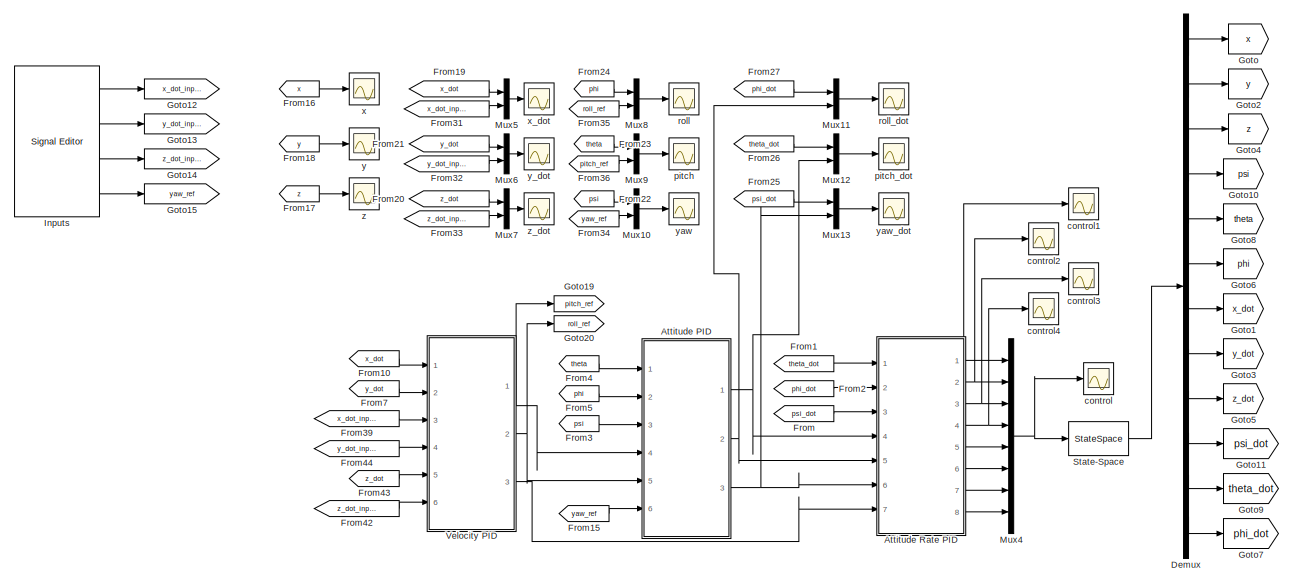
[diagram: root canvas - part 1/2, full width, top band]
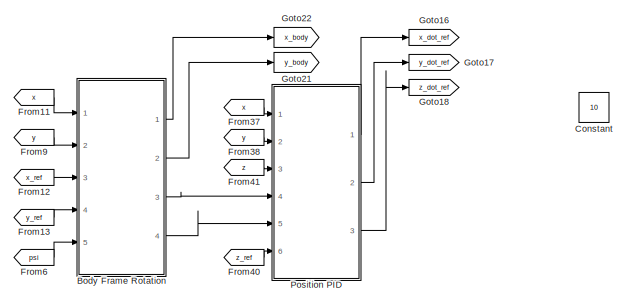
[diagram: root canvas - part 2/2, bottom left region]
MODEL slx_8fafa94729f0
KIND model
CONFIG AbsTol = auto
CONFIG EnableMultiTasking = off
CONFIG FixedStep = auto
CONFIG MaxStep = auto
CONFIG MinStep = auto
CONFIG RelTol = 1e-3
CONFIG SampleTimeConstraint = Unconstrained
CONFIG SolverName = VariableStepAuto
CONFIG StartTime = 0.0
CONFIG StopTime = 10
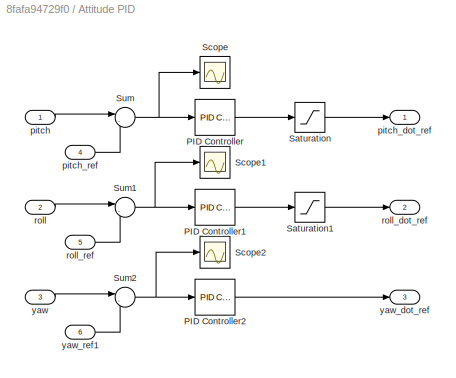
BLOCK [SubSystem] Attitude PID
  Ports = [6, 3]
  RequestExecContextInheritance = off
BLOCK [Reference] Attitude PID/PID Controller  REF=slpidlib/PID Controller
  Ports = [1, 1]
  SourceBlock = slpidlib/PID Controller
  SourceProductBaseCode = SL
  SourceType = PID 1dof
BLOCK [Reference] Attitude PID/PID Controller1  REF=slpidlib/PID Controller
  Ports = [1, 1]
  SourceBlock = slpidlib/PID Controller
  SourceProductBaseCode = SL
  SourceType = PID 1dof
BLOCK [Reference] Attitude PID/PID Controller2  REF=slpidlib/PID Controller
  Ports = [1, 1]
  SourceBlock = slpidlib/PID Controller
  SourceProductBaseCode = SL
  SourceType = PID 1dof
BLOCK [Saturate] Attitude PID/Saturation
  LowerLimit = -50
  UpperLimit = 50
BLOCK [Saturate] Attitude PID/Saturation1
  LowerLimit = -50
  UpperLimit = 50
BLOCK [Scope] Attitude PID/Scope
  Floating = off
  NumInputPorts = 1
  Ports = [1]
  ScopeSpecificationString = Simulink.scopes.TimeScopeBlockCfg('CurrentConfiguration', extmgr.ConfigurationSet(extmgr.Configuration('Core','General UI',true),extmgr.Configuration('Core','Source UI',true),extmgr.Configuration('Sources','WiredSimulink',true,'DataLoggingVariableName','ScopeData18'),extmgr.Configuration('Visuals','Time Domain',true,'SerializedDisplays',{struct('MinYLimReal','-0.52925','MaxYLimReal','0.4951','YLab...<+1413ch>
BLOCK [Scope] Attitude PID/Scope1
  Floating = off
  NumInputPorts = 1
  Ports = [1]
  ScopeSpecificationString = Simulink.scopes.TimeScopeBlockCfg('CurrentConfiguration', extmgr.ConfigurationSet(extmgr.Configuration('Core','General UI',true),extmgr.Configuration('Core','Source UI',true),extmgr.Configuration('Sources','WiredSimulink',true,'DataLoggingVariableName','ScopeData19'),extmgr.Configuration('Visuals','Time Domain',true,'SerializedDisplays',{struct('MinYLimReal','-7.62618','MaxYLimReal','13.13226','YL...<+1401ch>
BLOCK [Scope] Attitude PID/Scope2
  Floating = off
  NumInputPorts = 1
  Ports = [1]
  ScopeSpecificationString = Simulink.scopes.TimeScopeBlockCfg('CurrentConfiguration', extmgr.ConfigurationSet(extmgr.Configuration('Core','General UI',true),extmgr.Configuration('Core','Source UI',true),extmgr.Configuration('Sources','WiredSimulink',true,'DataLoggingVariableName','ScopeData20'),extmgr.Configuration('Visuals','Time Domain',true),extmgr.Configuration('Tools','Plot Navigation',true),extmgr.Configuration('Tools'...<+41ch>
BLOCK [Sum] Attitude PID/Sum
  Inputs = |-+
  Ports = [2, 1]
BLOCK [Sum] Attitude PID/Sum1
  Inputs = |-+
  Ports = [2, 1]
BLOCK [Sum] Attitude PID/Sum2
  Inputs = |-+
  Ports = [2, 1]
BLOCK [Inport] Attitude PID/pitch
BLOCK [Outport] Attitude PID/pitch_dot_ref
BLOCK [Inport] Attitude PID/pitch_ref
  Port = 4
BLOCK [Inport] Attitude PID/roll
  Port = 2
BLOCK [Outport] Attitude PID/roll_dot_ref
  Port = 2
BLOCK [Inport] Attitude PID/roll_ref
  Port = 5
BLOCK [Inport] Attitude PID/yaw
  Port = 3
BLOCK [Outport] Attitude PID/yaw_dot_ref
  Port = 3
BLOCK [Inport] Attitude PID/yaw_ref1
  Port = 6
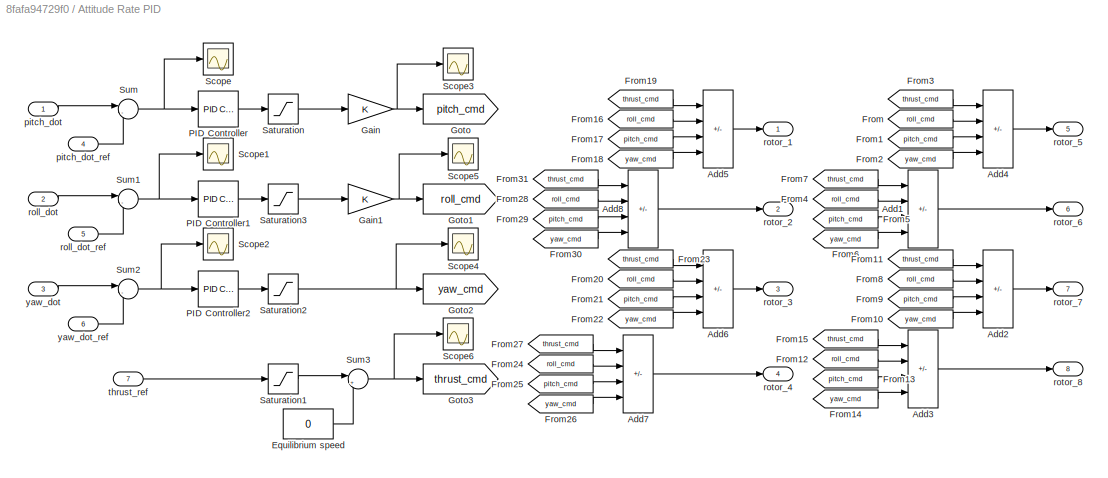
BLOCK [SubSystem] Attitude Rate PID
  Ports = [7, 8]
  RequestExecContextInheritance = off
BLOCK [Sum] Attitude Rate PID/Add1
  IconShape = rectangular
  Inputs = +-++
  Ports = [4, 1]
BLOCK [Sum] Attitude Rate PID/Add2
  IconShape = rectangular
  Inputs = +++-
  Ports = [4, 1]
BLOCK [Sum] Attitude Rate PID/Add3
  IconShape = rectangular
  Inputs = ++-+
  Ports = [4, 1]
BLOCK [Sum] Attitude Rate PID/Add4
  IconShape = rectangular
  Inputs = +---
  Ports = [4, 1]
BLOCK [Sum] Attitude Rate PID/Add5
  IconShape = rectangular
  Inputs = +---
  Ports = [4, 1]
BLOCK [Sum] Attitude Rate PID/Add6
  IconShape = rectangular
  Inputs = +++-
  Ports = [4, 1]
BLOCK [Sum] Attitude Rate PID/Add7
  IconShape = rectangular
  Inputs = ++-+
  Ports = [4, 1]
BLOCK [Sum] Attitude Rate PID/Add8
  IconShape = rectangular
  Inputs = +-++
  Ports = [4, 1]
BLOCK [Constant] Attitude Rate PID/Equilibrium speed
  Value = 0
BLOCK [From] Attitude Rate PID/From
  GotoTag = roll_cmd
BLOCK [From] Attitude Rate PID/From1
  GotoTag = pitch_cmd
BLOCK [From] Attitude Rate PID/From10
  GotoTag = yaw_cmd
BLOCK [From] Attitude Rate PID/From11
  GotoTag = thrust_cmd
BLOCK [From] Attitude Rate PID/From12
  GotoTag = roll_cmd
BLOCK [From] Attitude Rate PID/From13
  GotoTag = pitch_cmd
BLOCK [From] Attitude Rate PID/From14
  GotoTag = yaw_cmd
BLOCK [From] Attitude Rate PID/From15
  GotoTag = thrust_cmd
BLOCK [From] Attitude Rate PID/From16
  GotoTag = roll_cmd
BLOCK [From] Attitude Rate PID/From17
  GotoTag = pitch_cmd
BLOCK [From] Attitude Rate PID/From18
  GotoTag = yaw_cmd
BLOCK [From] Attitude Rate PID/From19
  GotoTag = thrust_cmd
BLOCK [From] Attitude Rate PID/From2
  GotoTag = yaw_cmd
BLOCK [From] Attitude Rate PID/From20
  GotoTag = roll_cmd
BLOCK [From] Attitude Rate PID/From21
  GotoTag = pitch_cmd
BLOCK [From] Attitude Rate PID/From22
  GotoTag = yaw_cmd
BLOCK [From] Attitude Rate PID/From23
  GotoTag = thrust_cmd
BLOCK [From] Attitude Rate PID/From24
  GotoTag = roll_cmd
BLOCK [From] Attitude Rate PID/From25
  GotoTag = pitch_cmd
BLOCK [From] Attitude Rate PID/From26
  GotoTag = yaw_cmd
BLOCK [From] Attitude Rate PID/From27
  GotoTag = thrust_cmd
BLOCK [From] Attitude Rate PID/From28
  GotoTag = roll_cmd
BLOCK [From] Attitude Rate PID/From29
  GotoTag = pitch_cmd
BLOCK [From] Attitude Rate PID/From3
  GotoTag = thrust_cmd
BLOCK [From] Attitude Rate PID/From30
  GotoTag = yaw_cmd
BLOCK [From] Attitude Rate PID/From31
  GotoTag = thrust_cmd
BLOCK [From] Attitude Rate PID/From4
  GotoTag = roll_cmd
BLOCK [From] Attitude Rate PID/From5
  GotoTag = pitch_cmd
BLOCK [From] Attitude Rate PID/From6
  GotoTag = yaw_cmd
BLOCK [From] Attitude Rate PID/From7
  GotoTag = thrust_cmd
BLOCK [From] Attitude Rate PID/From8
  GotoTag = roll_cmd
BLOCK [From] Attitude Rate PID/From9
  GotoTag = pitch_cmd
BLOCK [Gain] Attitude Rate PID/Gain
BLOCK [Gain] Attitude Rate PID/Gain1
BLOCK [Goto] Attitude Rate PID/Goto
  GotoTag = pitch_cmd
BLOCK [Goto] Attitude Rate PID/Goto1
  GotoTag = roll_cmd
BLOCK [Goto] Attitude Rate PID/Goto2
  GotoTag = yaw_cmd
BLOCK [Goto] Attitude Rate PID/Goto3
  GotoTag = thrust_cmd
BLOCK [Reference] Attitude Rate PID/PID Controller  REF=slpidlib/PID Controller
  Ports = [1, 1]
  SourceBlock = slpidlib/PID Controller
  SourceProductBaseCode = SL
  SourceType = PID 1dof
BLOCK [Reference] Attitude Rate PID/PID Controller1  REF=slpidlib/PID Controller
  Ports = [1, 1]
  SourceBlock = slpidlib/PID Controller
  SourceProductBaseCode = SL
  SourceType = PID 1dof
BLOCK [Reference] Attitude Rate PID/PID Controller2  REF=slpidlib/PID Controller
  Ports = [1, 1]
  SourceBlock = slpidlib/PID Controller
  SourceProductBaseCode = SL
  SourceType = PID 1dof
BLOCK [Saturate] Attitude Rate PID/Saturation
  LowerLimit = -2000
  UpperLimit = 2000
BLOCK [Saturate] Attitude Rate PID/Saturation1
  LowerLimit = -4000
  UpperLimit = 4000
BLOCK [Saturate] Attitude Rate PID/Saturation2
  LowerLimit = -2000
  UpperLimit = 2000
BLOCK [Saturate] Attitude Rate PID/Saturation3
  LowerLimit = -16000
  UpperLimit = 20000
BLOCK [Scope] Attitude Rate PID/Scope
  Floating = off
  NumInputPorts = 1
  Ports = [1]
  ScopeSpecificationString = Simulink.scopes.TimeScopeBlockCfg('CurrentConfiguration', extmgr.ConfigurationSet(extmgr.Configuration('Core','General UI',true),extmgr.Configuration('Core','Source UI',true),extmgr.Configuration('Sources','WiredSimulink',true,'DataLoggingVariableName','ScopeData21'),extmgr.Configuration('Visuals','Time Domain',true,'SerializedDisplays',{struct('MinYLimReal','-26.05046','MaxYLimReal','22.12504','Y...<+1388ch>
BLOCK [Scope] Attitude Rate PID/Scope1
  Floating = off
  NumInputPorts = 1
  Ports = [1]
  ScopeSpecificationString = Simulink.scopes.TimeScopeBlockCfg('CurrentConfiguration', extmgr.ConfigurationSet(extmgr.Configuration('Core','General UI',true),extmgr.Configuration('Core','Source UI',true),extmgr.Configuration('Sources','WiredSimulink',true,'DataLoggingVariableName','ScopeData22'),extmgr.Configuration('Visuals','Time Domain',true,'SerializedDisplays',{struct('MinYLimReal','-62.49988','MaxYLimReal','62.49891','Y...<+1370ch>
BLOCK [Scope] Attitude Rate PID/Scope2
  Floating = off
  NumInputPorts = 1
  Ports = [1]
  ScopeSpecificationString = Simulink.scopes.TimeScopeBlockCfg('CurrentConfiguration', extmgr.ConfigurationSet(extmgr.Configuration('Core','General UI',true),extmgr.Configuration('Core','Source UI',true),extmgr.Configuration('Sources','WiredSimulink',true,'DataLoggingVariableName','ScopeData23'),extmgr.Configuration('Visuals','Time Domain',true),extmgr.Configuration('Tools','Plot Navigation',true),extmgr.Configuration('Tools'...<+41ch>
BLOCK [Scope] Attitude Rate PID/Scope3
  Floating = off
  NumInputPorts = 1
  Ports = [1]
  ScopeSpecificationString = Simulink.scopes.TimeScopeBlockCfg('CurrentConfiguration', extmgr.ConfigurationSet(extmgr.Configuration('Core','General UI',true),extmgr.Configuration('Core','Source UI',true),extmgr.Configuration('Sources','WiredSimulink',true,'DataLoggingVariableName','ScopeData28'),extmgr.Configuration('Visuals','Time Domain',true,'SerializedDisplays',{struct('MinYLimReal','-0.0004','MaxYLimReal','0.00048','YLab...<+1362ch>
BLOCK [Scope] Attitude Rate PID/Scope4
  Floating = off
  NumInputPorts = 1
  Ports = [1]
  ScopeSpecificationString = Simulink.scopes.TimeScopeBlockCfg('CurrentConfiguration', extmgr.ConfigurationSet(extmgr.Configuration('Core','General UI',true),extmgr.Configuration('Core','Source UI',true),extmgr.Configuration('Sources','WiredSimulink',true,'DataLoggingVariableName','ScopeData29'),extmgr.Configuration('Visuals','Time Domain',true),extmgr.Configuration('Tools','Plot Navigation',true),extmgr.Configuration('Tools'...<+41ch>
BLOCK [Scope] Attitude Rate PID/Scope5
  Floating = off
  NumInputPorts = 1
  Ports = [1]
  ScopeSpecificationString = Simulink.scopes.TimeScopeBlockCfg('CurrentConfiguration', extmgr.ConfigurationSet(extmgr.Configuration('Core','General UI',true),extmgr.Configuration('Core','Source UI',true),extmgr.Configuration('Sources','WiredSimulink',true,'DataLoggingVariableName','ScopeData30'),extmgr.Configuration('Visuals','Time Domain',true,'SerializedDisplays',{struct('MinYLimReal','-20500.00000','MaxYLimReal','24500.000...<+1395ch>
BLOCK [Scope] Attitude Rate PID/Scope6
  Floating = off
  NumInputPorts = 1
  Ports = [1]
  ScopeSpecificationString = Simulink.scopes.TimeScopeBlockCfg('CurrentConfiguration', extmgr.ConfigurationSet(extmgr.Configuration('Core','General UI',true),extmgr.Configuration('Core','Source UI',true),extmgr.Configuration('Sources','WiredSimulink',true,'DataLoggingVariableName','ScopeData31'),extmgr.Configuration('Visuals','Time Domain',true),extmgr.Configuration('Tools','Plot Navigation',true),extmgr.Configuration('Tools'...<+41ch>
BLOCK [Sum] Attitude Rate PID/Sum
  Inputs = |-+
  Ports = [2, 1]
BLOCK [Sum] Attitude Rate PID/Sum1
  Inputs = |-+
  Ports = [2, 1]
BLOCK [Sum] Attitude Rate PID/Sum2
  Inputs = |-+
  Ports = [2, 1]
BLOCK [Sum] Attitude Rate PID/Sum3
  Inputs = |++
  Ports = [2, 1]
BLOCK [Inport] Attitude Rate PID/pitch_dot
BLOCK [Inport] Attitude Rate PID/pitch_dot_ref
  Port = 4
BLOCK [Inport] Attitude Rate PID/roll_dot
  Port = 2
BLOCK [Inport] Attitude Rate PID/roll_dot_ref
  Port = 5
BLOCK [Outport] Attitude Rate PID/rotor_1
BLOCK [Outport] Attitude Rate PID/rotor_2
  Port = 2
BLOCK [Outport] Attitude Rate PID/rotor_3
  Port = 3
BLOCK [Outport] Attitude Rate PID/rotor_4
  Port = 4
BLOCK [Outport] Attitude Rate PID/rotor_5
  Port = 5
BLOCK [Outport] Attitude Rate PID/rotor_6
  Port = 6
BLOCK [Outport] Attitude Rate PID/rotor_7
  Port = 7
BLOCK [Outport] Attitude Rate PID/rotor_8
  Port = 8
BLOCK [Inport] Attitude Rate PID/thrust_ref
  Port = 7
BLOCK [Inport] Attitude Rate PID/yaw_dot
  Port = 3
BLOCK [Inport] Attitude Rate PID/yaw_dot_ref
  Port = 6
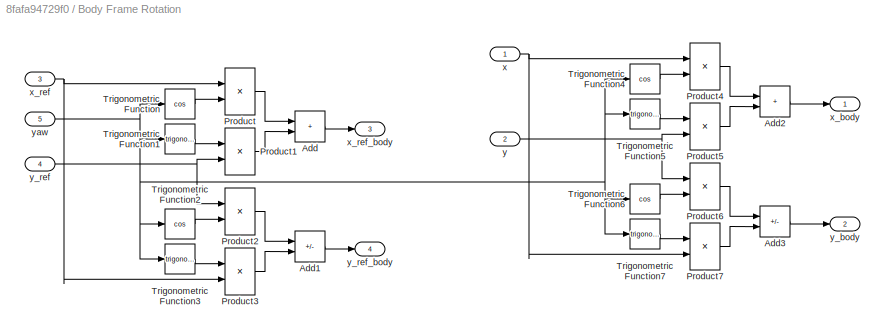
BLOCK [SubSystem] Body Frame Rotation
  Commented = on
  Ports = [5, 4]
  RequestExecContextInheritance = off
BLOCK [Sum] Body Frame Rotation/Add
  IconShape = rectangular
  Ports = [2, 1]
BLOCK [Sum] Body Frame Rotation/Add1
  IconShape = rectangular
  Inputs = +-
  Ports = [2, 1]
BLOCK [Sum] Body Frame Rotation/Add2
  IconShape = rectangular
  Ports = [2, 1]
BLOCK [Sum] Body Frame Rotation/Add3
  IconShape = rectangular
  Inputs = +-
  Ports = [2, 1]
BLOCK [Product] Body Frame Rotation/Product
  Ports = [2, 1]
BLOCK [Product] Body Frame Rotation/Product1
  Ports = [2, 1]
BLOCK [Product] Body Frame Rotation/Product2
  Ports = [2, 1]
BLOCK [Product] Body Frame Rotation/Product3
  Ports = [2, 1]
BLOCK [Product] Body Frame Rotation/Product4
  Ports = [2, 1]
BLOCK [Product] Body Frame Rotation/Product5
  Ports = [2, 1]
BLOCK [Product] Body Frame Rotation/Product6
  Ports = [2, 1]
BLOCK [Product] Body Frame Rotation/Product7
  Ports = [2, 1]
BLOCK [Trigonometry] Body Frame Rotation/Trigonometric Function
  Operator = cos
  Ports = [1, 1]
BLOCK [Trigonometry] Body Frame Rotation/Trigonometric Function1
  Ports = [1, 1]
BLOCK [Trigonometry] Body Frame Rotation/Trigonometric Function2
  Operator = cos
  Ports = [1, 1]
BLOCK [Trigonometry] Body Frame Rotation/Trigonometric Function3
  Ports = [1, 1]
BLOCK [Trigonometry] Body Frame Rotation/Trigonometric Function4
  Operator = cos
  Ports = [1, 1]
BLOCK [Trigonometry] Body Frame Rotation/Trigonometric Function5
  Ports = [1, 1]
BLOCK [Trigonometry] Body Frame Rotation/Trigonometric Function6
  Operator = cos
  Ports = [1, 1]
BLOCK [Trigonometry] Body Frame Rotation/Trigonometric Function7
  Ports = [1, 1]
BLOCK [Inport] Body Frame Rotation/x
BLOCK [Outport] Body Frame Rotation/x_body
BLOCK [Inport] Body Frame Rotation/x_ref
  Port = 3
BLOCK [Outport] Body Frame Rotation/x_ref_body
  Port = 3
BLOCK [Inport] Body Frame Rotation/y
  Port = 2
BLOCK [Outport] Body Frame Rotation/y_body
  Port = 2
BLOCK [Inport] Body Frame Rotation/y_ref
  Port = 4
BLOCK [Outport] Body Frame Rotation/y_ref_body
  Port = 4
BLOCK [Inport] Body Frame Rotation/yaw
  Port = 5
BLOCK [Constant] Constant
  Value = 10
BLOCK [Demux] Demux
  Outputs = 12
  Ports = [1, 12]
BLOCK [From] From
  GotoTag = psi_dot
BLOCK [From] From1
  GotoTag = theta_dot
BLOCK [From] From10
  GotoTag = x_dot
BLOCK [From] From11
  Commented = on
  GotoTag = x
BLOCK [From] From12
  Commented = on
  GotoTag = x_ref
BLOCK [From] From13
  Commented = on
  GotoTag = y_ref
BLOCK [From] From15
  GotoTag = yaw_ref
BLOCK [From] From16
  GotoTag = x
BLOCK [From] From17
  GotoTag = z
BLOCK [From] From18
  GotoTag = y
BLOCK [From] From19
  GotoTag = x_dot
BLOCK [From] From2
  GotoTag = phi_dot
BLOCK [From] From20
  GotoTag = z_dot
BLOCK [From] From21
  GotoTag = y_dot
BLOCK [From] From22
  GotoTag = psi
BLOCK [From] From23
  GotoTag = theta
BLOCK [From] From24
  GotoTag = phi
BLOCK [From] From25
  GotoTag = psi_dot
BLOCK [From] From26
  GotoTag = theta_dot
BLOCK [From] From27
  GotoTag = phi_dot
BLOCK [From] From3
  GotoTag = psi
BLOCK [From] From31
  GotoTag = x_dot_input
BLOCK [From] From32
  GotoTag = y_dot_input
BLOCK [From] From33
  GotoTag = z_dot_input
BLOCK [From] From34
  GotoTag = yaw_ref
BLOCK [From] From35
  GotoTag = roll_ref
BLOCK [From] From36
  GotoTag = pitch_ref
BLOCK [From] From37
  Commented = on
  GotoTag = x
BLOCK [From] From38
  Commented = on
  GotoTag = y
BLOCK [From] From39
  GotoTag = x_dot_input
BLOCK [From] From4
  GotoTag = theta
BLOCK [From] From40
  Commented = on
  GotoTag = z_ref
BLOCK [From] From41
  Commented = on
  GotoTag = z
BLOCK [From] From42
  GotoTag = z_dot_input
BLOCK [From] From43
  GotoTag = z_dot
BLOCK [From] From44
  GotoTag = y_dot_input
BLOCK [From] From5
  GotoTag = phi
BLOCK [From] From6
  Commented = on
  GotoTag = psi
BLOCK [From] From7
  GotoTag = y_dot
BLOCK [From] From9
  Commented = on
  GotoTag = y
BLOCK [Goto] Goto
  GotoTag = x
BLOCK [Goto] Goto1
  GotoTag = x_dot
BLOCK [Goto] Goto10
  GotoTag = psi
BLOCK [Goto] Goto11
  GotoTag = psi_dot
BLOCK [Goto] Goto12
  GotoTag = x_dot_input
BLOCK [Goto] Goto13
  GotoTag = y_dot_input
BLOCK [Goto] Goto14
  GotoTag = z_dot_input
BLOCK [Goto] Goto15
  GotoTag = yaw_ref
BLOCK [Goto] Goto16
  Commented = on
  GotoTag = x_dot_ref
BLOCK [Goto] Goto17
  Commented = on
  GotoTag = y_dot_ref
BLOCK [Goto] Goto18
  Commented = on
  GotoTag = z_dot_ref
BLOCK [Goto] Goto19
  GotoTag = pitch_ref
BLOCK [Goto] Goto2
  GotoTag = y
BLOCK [Goto] Goto20
  GotoTag = roll_ref
BLOCK [Goto] Goto21
  Commented = on
  GotoTag = y_body
BLOCK [Goto] Goto22
  Commented = on
  GotoTag = x_body
BLOCK [Goto] Goto3
  GotoTag = y_dot
BLOCK [Goto] Goto4
  GotoTag = z
BLOCK [Goto] Goto5
  GotoTag = z_dot
BLOCK [Goto] Goto6
  GotoTag = phi
BLOCK [Goto] Goto7
  GotoTag = phi_dot
BLOCK [Goto] Goto8
  GotoTag = theta
BLOCK [Goto] Goto9
  GotoTag = theta_dot
BLOCK [Reference] Inputs  REF=SignalEditorBlockLib/Signal Editor
  Ports = [0, 4]
  SourceBlock = SignalEditorBlockLib/Signal Editor
  SourceProductBaseCode = SL
  SourceType = SignalEditor
  UserDataPersistent = on
BLOCK [Mux] Mux10
  DisplayOption = bar
  Inputs = 2
  Ports = [2, 1]
BLOCK [Mux] Mux11
  DisplayOption = bar
  Inputs = 2
  Ports = [2, 1]
BLOCK [Mux] Mux12
  DisplayOption = bar
  Inputs = 2
  Ports = [2, 1]
BLOCK [Mux] Mux13
  DisplayOption = bar
  Inputs = 2
  Ports = [2, 1]
BLOCK [Mux] Mux4
  DisplayOption = bar
  Inputs = 8
  Ports = [8, 1]
BLOCK [Mux] Mux5
  DisplayOption = bar
  Inputs = 2
  Ports = [2, 1]
BLOCK [Mux] Mux6
  DisplayOption = bar
  Inputs = 2
  Ports = [2, 1]
BLOCK [Mux] Mux7
  DisplayOption = bar
  Inputs = 2
  Ports = [2, 1]
BLOCK [Mux] Mux8
  DisplayOption = bar
  Inputs = 2
  Ports = [2, 1]
BLOCK [Mux] Mux9
  DisplayOption = bar
  Inputs = 2
  Ports = [2, 1]
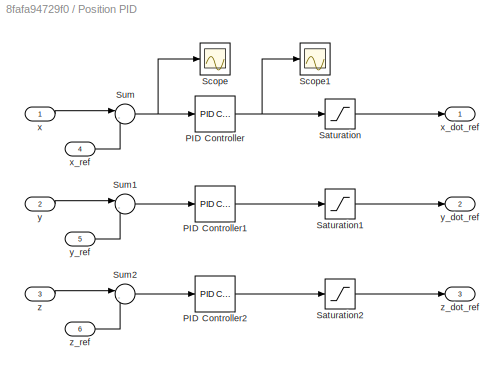
BLOCK [SubSystem] Position PID
  Commented = on
  Ports = [6, 3]
  RequestExecContextInheritance = off
BLOCK [Reference] Position PID/PID Controller  REF=slpidlib/PID Controller
  Ports = [1, 1]
  SourceBlock = slpidlib/PID Controller
  SourceProductBaseCode = SL
  SourceType = PID 1dof
BLOCK [Reference] Position PID/PID Controller1  REF=slpidlib/PID Controller
  Ports = [1, 1]
  SourceBlock = slpidlib/PID Controller
  SourceProductBaseCode = SL
  SourceType = PID 1dof
BLOCK [Reference] Position PID/PID Controller2  REF=slpidlib/PID Controller
  Ports = [1, 1]
  SourceBlock = slpidlib/PID Controller
  SourceProductBaseCode = SL
  SourceType = PID 1dof
BLOCK [Saturate] Position PID/Saturation
  LowerLimit = -1
  UpperLimit = 1
BLOCK [Saturate] Position PID/Saturation1
  LowerLimit = -1
  UpperLimit = 1
BLOCK [Saturate] Position PID/Saturation2
  LowerLimit = -1
  UpperLimit = 1
BLOCK [Scope] Position PID/Scope
  Floating = off
  NumInputPorts = 1
  Ports = [1]
  ScopeSpecificationString = Simulink.scopes.TimeScopeBlockCfg('CurrentConfiguration', extmgr.ConfigurationSet(extmgr.Configuration('Core','General UI',true),extmgr.Configuration('Core','Source UI',true),extmgr.Configuration('Sources','WiredSimulink',true,'DataLoggingVariableName','ScopeData25'),extmgr.Configuration('Visuals','Time Domain',true,'SerializedDisplays',{struct('MinYLimReal','-0.35275','MaxYLimReal','1.15031','YLa...<+1413ch>
BLOCK [Scope] Position PID/Scope1
  Floating = off
  NumInputPorts = 1
  Ports = [1]
  ScopeSpecificationString = Simulink.scopes.TimeScopeBlockCfg('CurrentConfiguration', extmgr.ConfigurationSet(extmgr.Configuration('Core','General UI',true),extmgr.Configuration('Core','Source UI',true),extmgr.Configuration('Sources','WiredSimulink',true,'DataLoggingVariableName','ScopeData26'),extmgr.Configuration('Visuals','Time Domain',true,'SerializedDisplays',{struct('MinYLimReal','-0.02164','MaxYLimReal','0.01132','YLa...<+1424ch>
BLOCK [Sum] Position PID/Sum
  Inputs = |-+
  Ports = [2, 1]
BLOCK [Sum] Position PID/Sum1
  Inputs = |-+
  Ports = [2, 1]
BLOCK [Sum] Position PID/Sum2
  Inputs = |-+
  Ports = [2, 1]
BLOCK [Inport] Position PID/x
BLOCK [Outport] Position PID/x_dot_ref
BLOCK [Inport] Position PID/x_ref
  Port = 4
BLOCK [Inport] Position PID/y
  Port = 2
BLOCK [Outport] Position PID/y_dot_ref
  Port = 2
BLOCK [Inport] Position PID/y_ref
  Port = 5
BLOCK [Inport] Position PID/z
  Port = 3
BLOCK [Outport] Position PID/z_dot_ref
  Port = 3
BLOCK [Inport] Position PID/z_ref
  Port = 6
BLOCK [StateSpace] State-Space
  A = A_dual
  B = B_dual
  C = C
  D = D
  InitialCondition = 0
  Ports = [1, 1]
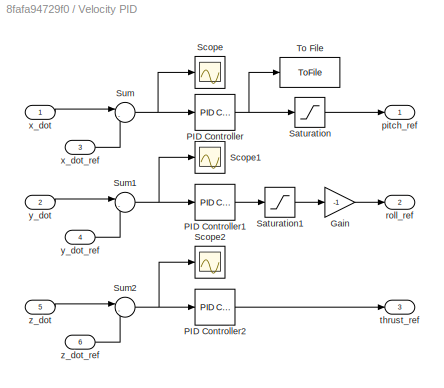
BLOCK [SubSystem] Velocity PID
  Ports = [6, 3]
  RequestExecContextInheritance = off
BLOCK [Gain] Velocity PID/Gain
  Gain = -1
BLOCK [Reference] Velocity PID/PID Controller  REF=slpidlib/PID Controller
  Ports = [1, 1]
  SourceBlock = slpidlib/PID Controller
  SourceProductBaseCode = SL
  SourceType = PID 1dof
BLOCK [Reference] Velocity PID/PID Controller1  REF=slpidlib/PID Controller
  Ports = [1, 1]
  SourceBlock = slpidlib/PID Controller
  SourceProductBaseCode = SL
  SourceType = PID 1dof
BLOCK [Reference] Velocity PID/PID Controller2  REF=slpidlib/PID Controller
  Ports = [1, 1]
  SourceBlock = slpidlib/PID Controller
  SourceProductBaseCode = SL
  SourceType = PID 1dof
BLOCK [Saturate] Velocity PID/Saturation
  LowerLimit = -30*pi/180
  UpperLimit = 30*pi/180
BLOCK [Saturate] Velocity PID/Saturation1
  LowerLimit = -20
  UpperLimit = 20
BLOCK [Scope] Velocity PID/Scope
  Floating = off
  NumInputPorts = 1
  Ports = [1]
  ScopeSpecificationString = Simulink.scopes.TimeScopeBlockCfg('CurrentConfiguration', extmgr.ConfigurationSet(extmgr.Configuration('Core','General UI',true),extmgr.Configuration('Core','Source UI',true),extmgr.Configuration('Sources','WiredSimulink',true,'DataLoggingVariableName','ScopeData17'),extmgr.Configuration('Visuals','Time Domain',true,'SerializedDisplays',{struct('MinYLimReal','-0.1301','MaxYLimReal','1.12557','YLab...<+1438ch>
BLOCK [Scope] Velocity PID/Scope1
  Floating = off
  NumInputPorts = 1
  Ports = [1]
  ScopeSpecificationString = Simulink.scopes.TimeScopeBlockCfg('CurrentConfiguration', extmgr.ConfigurationSet(extmgr.Configuration('Core','General UI',true),extmgr.Configuration('Core','Source UI',true),extmgr.Configuration('Sources','WiredSimulink',true,'DataLoggingVariableName','ScopeData24'),extmgr.Configuration('Visuals','Time Domain',true,'SerializedDisplays',{struct('MinYLimReal','-0.07214','MaxYLimReal','0.04135','YLa...<+1364ch>
BLOCK [Scope] Velocity PID/Scope2
  Floating = off
  NumInputPorts = 1
  Ports = [1]
  ScopeSpecificationString = Simulink.scopes.TimeScopeBlockCfg('CurrentConfiguration', extmgr.ConfigurationSet(extmgr.Configuration('Core','General UI',true),extmgr.Configuration('Core','Source UI',true),extmgr.Configuration('Sources','WiredSimulink',true,'DataLoggingVariableName','ScopeData27'),extmgr.Configuration('Visuals','Time Domain',true),extmgr.Configuration('Tools','Plot Navigation',true),extmgr.Configuration('Tools'...<+41ch>
BLOCK [Sum] Velocity PID/Sum
  Inputs = |-+
  Ports = [2, 1]
BLOCK [Sum] Velocity PID/Sum1
  Inputs = |-+
  Ports = [2, 1]
BLOCK [Sum] Velocity PID/Sum2
  Inputs = |-+
  Ports = [2, 1]
BLOCK [ToFile] Velocity PID/To File
  Filename = x_dot_out.mat
  MatrixName = x_dot_out
  Ports = [1]
  SaveFormat = Timeseries
BLOCK [Outport] Velocity PID/pitch_ref
BLOCK [Outport] Velocity PID/roll_ref
  Port = 2
BLOCK [Outport] Velocity PID/thrust_ref
  Port = 3
BLOCK [Inport] Velocity PID/x_dot
BLOCK [Inport] Velocity PID/x_dot_ref
  Port = 3
BLOCK [Inport] Velocity PID/y_dot
  Port = 2
BLOCK [Inport] Velocity PID/y_dot_ref
  Port = 4
BLOCK [Inport] Velocity PID/z_dot
  Port = 5
BLOCK [Inport] Velocity PID/z_dot_ref
  Port = 6
BLOCK [Scope] control
  Floating = off
  NumInputPorts = 1
  Ports = [1]
  ScopeSpecificationString = Simulink.scopes.TimeScopeBlockCfg('CurrentConfiguration', extmgr.ConfigurationSet(extmgr.Configuration('Core','General UI',true),extmgr.Configuration('Core','Source UI',true),extmgr.Configuration('Sources','WiredSimulink',true,'DataLoggingVariableName','ScopeData12'),extmgr.Configuration('Visuals','Time Domain',true,'SerializedDisplays',{struct('MinYLimReal','-25000.00000','MaxYLimReal','25000.000...<+2071ch>
BLOCK [Scope] control1
  Floating = off
  NumInputPorts = 1
  Ports = [1]
  ScopeSpecificationString = Simulink.scopes.TimeScopeBlockCfg('CurrentConfiguration', extmgr.ConfigurationSet(extmgr.Configuration('Core','General UI',true),extmgr.Configuration('Core','Source UI',true),extmgr.Configuration('Sources','WiredSimulink',true,'DataLoggingVariableName','ScopeData13'),extmgr.Configuration('Visuals','Time Domain',true,'SerializedDisplays',{struct('MinYLimReal','-4781.25','MaxYLimReal','531.25','YLab...<+1452ch>
BLOCK [Scope] control2
  Floating = off
  NumInputPorts = 1
  Ports = [1]
  ScopeSpecificationString = Simulink.scopes.TimeScopeBlockCfg('CurrentConfiguration', extmgr.ConfigurationSet(extmgr.Configuration('Core','General UI',true),extmgr.Configuration('Core','Source UI',true),extmgr.Configuration('Sources','WiredSimulink',true,'DataLoggingVariableName','ScopeData14'),extmgr.Configuration('Visuals','Time Domain',true,'SerializedDisplays',{struct('MinYLimReal','-531.25','MaxYLimReal','4781.25','YLab...<+1450ch>
BLOCK [Scope] control3
  Floating = off
  NumInputPorts = 1
  Ports = [1]
  ScopeSpecificationString = Simulink.scopes.TimeScopeBlockCfg('CurrentConfiguration', extmgr.ConfigurationSet(extmgr.Configuration('Core','General UI',true),extmgr.Configuration('Core','Source UI',true),extmgr.Configuration('Sources','WiredSimulink',true,'DataLoggingVariableName','ScopeData15'),extmgr.Configuration('Visuals','Time Domain',true,'SerializedDisplays',{struct('MinYLimReal','-349.64743','MaxYLimReal','3146.82689'...<+1468ch>
BLOCK [Scope] control4
  Floating = off
  NumInputPorts = 1
  Ports = [1]
  ScopeSpecificationString = Simulink.scopes.TimeScopeBlockCfg('CurrentConfiguration', extmgr.ConfigurationSet(extmgr.Configuration('Core','General UI',true),extmgr.Configuration('Core','Source UI',true),extmgr.Configuration('Sources','WiredSimulink',true,'DataLoggingVariableName','ScopeData16'),extmgr.Configuration('Visuals','Time Domain',true,'SerializedDisplays',{struct('MinYLimReal','-349.64743','MaxYLimReal','3146.82689'...<+1468ch>
BLOCK [Scope] pitch
  Floating = off
  NumInputPorts = 1
  Ports = [1]
  ScopeSpecificationString = Simulink.scopes.TimeScopeBlockCfg('CurrentConfiguration', extmgr.ConfigurationSet(extmgr.Configuration('Core','General UI',true,'FigureColor',[0.941176470588235 0.941176470588235 0.941176470588235]),extmgr.Configuration('Core','Source UI',true),extmgr.Configuration('Sources','WiredSimulink',true,'DataLoggingVariableName','ScopeData7'),extmgr.Configuration('Visuals','Time Domain',true,'SerializedDi...<+1711ch>
BLOCK [Scope] pitch_dot
  Floating = off
  NumInputPorts = 1
  Ports = [1]
  ScopeSpecificationString = Simulink.scopes.TimeScopeBlockCfg('CurrentConfiguration', extmgr.ConfigurationSet(extmgr.Configuration('Core','General UI',true,'FigureColor',[0.941176470588235 0.941176470588235 0.941176470588235]),extmgr.Configuration('Core','Source UI',true),extmgr.Configuration('Sources','WiredSimulink',true,'DataLoggingVariableName','ScopeData10'),extmgr.Configuration('Visuals','Time Domain',true,'SerializedD...<+1692ch>
BLOCK [Scope] roll
  Floating = off
  NumInputPorts = 1
  Ports = [1]
  ScopeSpecificationString = Simulink.scopes.TimeScopeBlockCfg('CurrentConfiguration', extmgr.ConfigurationSet(extmgr.Configuration('Core','General UI',true,'FigureColor',[0.941176470588235 0.941176470588235 0.941176470588235]),extmgr.Configuration('Core','Source UI',true),extmgr.Configuration('Sources','WiredSimulink',true,'DataLoggingVariableName','ScopeData8'),extmgr.Configuration('Visuals','Time Domain',true,'SerializedDi...<+1750ch>
BLOCK [Scope] roll_dot
  Floating = off
  NumInputPorts = 1
  Ports = [1]
  ScopeSpecificationString = Simulink.scopes.TimeScopeBlockCfg('CurrentConfiguration', extmgr.ConfigurationSet(extmgr.Configuration('Core','General UI',true,'FigureColor',[0.941176470588235 0.941176470588235 0.941176470588235]),extmgr.Configuration('Core','Source UI',true),extmgr.Configuration('Sources','WiredSimulink',true,'DataLoggingVariableName','ScopeData11'),extmgr.Configuration('Visuals','Time Domain',true,'SerializedD...<+1724ch>
BLOCK [Scope] x
  Floating = off
  NumInputPorts = 1
  Ports = [1]
  ScopeSpecificationString = Simulink.scopes.TimeScopeBlockCfg('CurrentConfiguration', extmgr.ConfigurationSet(extmgr.Configuration('Core','General UI',true),extmgr.Configuration('Core','Source UI',true),extmgr.Configuration('Sources','WiredSimulink',true,'DataLoggingVariableName','ScopeData2'),extmgr.Configuration('Visuals','Time Domain',true,'SerializedDisplays',{struct('MinYLimReal','-5.62384','MaxYLimReal','5.04961','YLab...<+1562ch>
BLOCK [Scope] x_dot
  Floating = off
  NumInputPorts = 1
  Ports = [1]
  ScopeSpecificationString = Simulink.scopes.TimeScopeBlockCfg('CurrentConfiguration', extmgr.ConfigurationSet(extmgr.Configuration('Core','General UI',true,'FigureColor',[0.941176470588235 0.941176470588235 0.941176470588235]),extmgr.Configuration('Core','Source UI',true),extmgr.Configuration('Sources','WiredSimulink',true,'DataLoggingVariableName','ScopeData5'),extmgr.Configuration('Visuals','Time Domain',true,'SerializedDi...<+1741ch>
BLOCK [Scope] y
  Floating = off
  NumInputPorts = 1
  Ports = [1]
  ScopeSpecificationString = Simulink.scopes.TimeScopeBlockCfg('CurrentConfiguration', extmgr.ConfigurationSet(extmgr.Configuration('Core','General UI',true),extmgr.Configuration('Core','Source UI',true),extmgr.Configuration('Sources','WiredSimulink',true,'DataLoggingVariableName','ScopeData1'),extmgr.Configuration('Visuals','Time Domain',true,'SerializedDisplays',{struct('MinYLimReal','-0.01467','MaxYLimReal','0.07001','YLab...<+1383ch>
BLOCK [Scope] y_dot
  Floating = off
  NumInputPorts = 1
  Ports = [1]
  ScopeSpecificationString = Simulink.scopes.TimeScopeBlockCfg('CurrentConfiguration', extmgr.ConfigurationSet(extmgr.Configuration('Core','General UI',true,'FigureColor',[0.941176470588235 0.941176470588235 0.941176470588235]),extmgr.Configuration('Core','Source UI',true),extmgr.Configuration('Sources','WiredSimulink',true,'DataLoggingVariableName','ScopeData4'),extmgr.Configuration('Visuals','Time Domain',true,'SerializedDi...<+1709ch>
BLOCK [Scope] yaw
  Floating = off
  NumInputPorts = 1
  Ports = [1]
  ScopeSpecificationString = Simulink.scopes.TimeScopeBlockCfg('CurrentConfiguration', extmgr.ConfigurationSet(extmgr.Configuration('Core','General UI',true),extmgr.Configuration('Core','Source UI',true),extmgr.Configuration('Sources','WiredSimulink',true,'DataLoggingVariableName','ScopeData6'),extmgr.Configuration('Visuals','Time Domain',true,'SerializedDisplays',{struct('MinYLimReal','-1.00000','MaxYLimReal','1.00000','YLab...<+1430ch>
BLOCK [Scope] yaw_dot
  Floating = off
  NumInputPorts = 1
  Ports = [1]
  ScopeSpecificationString = Simulink.scopes.TimeScopeBlockCfg('CurrentConfiguration', extmgr.ConfigurationSet(extmgr.Configuration('Core','General UI',true),extmgr.Configuration('Core','Source UI',true),extmgr.Configuration('Sources','WiredSimulink',true,'DataLoggingVariableName','ScopeData9'),extmgr.Configuration('Visuals','Time Domain',true,'SerializedDisplays',{struct('MinYLimReal','-0.00000008','MaxYLimReal','0.00000011'...<+1441ch>
BLOCK [Scope] z
  Floating = off
  NumInputPorts = 1
  Ports = [1]
  ScopeSpecificationString = Simulink.scopes.TimeScopeBlockCfg('CurrentConfiguration', extmgr.ConfigurationSet(extmgr.Configuration('Core','General UI',true),extmgr.Configuration('Core','Source UI',true),extmgr.Configuration('Sources','WiredSimulink',true),extmgr.Configuration('Visuals','Time Domain',true,'SerializedDisplays',{struct('MinYLimReal','-24.5162','MaxYLimReal','2.72402','YLabelReal','','MinYLimMag','0.00000','MaxY...<+1346ch>
BLOCK [Scope] z_dot
  Floating = off
  NumInputPorts = 1
  Ports = [1]
  ScopeSpecificationString = Simulink.scopes.TimeScopeBlockCfg('CurrentConfiguration', extmgr.ConfigurationSet(extmgr.Configuration('Core','General UI',true),extmgr.Configuration('Core','Source UI',true),extmgr.Configuration('Sources','WiredSimulink',true,'DataLoggingVariableName','ScopeData3'),extmgr.Configuration('Visuals','Time Domain',true,'SerializedDisplays',{struct('MinYLimReal','-0.00000011','MaxYLimReal','0.00000002'...<+1404ch>
LINE Attitude PID/PID Controller1:1 -> Attitude PID/Saturation1:1
LINE Attitude PID/PID Controller2:1 -> Attitude PID/yaw_dot_ref:1
LINE Attitude PID/PID Controller:1 -> Attitude PID/Saturation:1
LINE Attitude PID/Saturation1:1 -> Attitude PID/roll_dot_ref:1
LINE Attitude PID/Saturation:1 -> Attitude PID/pitch_dot_ref:1
NET Attitude PID/Sum1:1 -> Attitude PID/PID Controller1:1, Attitude PID/Scope1:1
NET Attitude PID/Sum2:1 -> Attitude PID/PID Controller2:1, Attitude PID/Scope2:1
NET Attitude PID/Sum:1 -> Attitude PID/PID Controller:1, Attitude PID/Scope:1
LINE Attitude PID/pitch:1 -> Attitude PID/Sum:1
LINE Attitude PID/pitch_ref:1 -> Attitude PID/Sum:2
LINE Attitude PID/roll:1 -> Attitude PID/Sum1:1
LINE Attitude PID/roll_ref:1 -> Attitude PID/Sum1:2
LINE Attitude PID/yaw:1 -> Attitude PID/Sum2:1
LINE Attitude PID/yaw_ref1:1 -> Attitude PID/Sum2:2
NET Attitude PID:1 -> Attitude Rate PID:4, Mux12:2
NET Attitude PID:2 -> Attitude Rate PID:5, Mux11:2
NET Attitude PID:3 -> Attitude Rate PID:6, Mux13:2
LINE Attitude Rate PID/Add1:1 -> Attitude Rate PID/rotor_6:1
LINE Attitude Rate PID/Add2:1 -> Attitude Rate PID/rotor_7:1
LINE Attitude Rate PID/Add3:1 -> Attitude Rate PID/rotor_8:1
LINE Attitude Rate PID/Add4:1 -> Attitude Rate PID/rotor_5:1
LINE Attitude Rate PID/Add5:1 -> Attitude Rate PID/rotor_1:1
LINE Attitude Rate PID/Add6:1 -> Attitude Rate PID/rotor_3:1
LINE Attitude Rate PID/Add7:1 -> Attitude Rate PID/rotor_4:1
LINE Attitude Rate PID/Add8:1 -> Attitude Rate PID/rotor_2:1
LINE Attitude Rate PID/Equilibrium speed:1 -> Attitude Rate PID/Sum3:2
LINE Attitude Rate PID/From10:1 -> Attitude Rate PID/Add2:4
LINE Attitude Rate PID/From11:1 -> Attitude Rate PID/Add2:1
LINE Attitude Rate PID/From12:1 -> Attitude Rate PID/Add3:2
LINE Attitude Rate PID/From13:1 -> Attitude Rate PID/Add3:3
LINE Attitude Rate PID/From14:1 -> Attitude Rate PID/Add3:4
LINE Attitude Rate PID/From15:1 -> Attitude Rate PID/Add3:1
LINE Attitude Rate PID/From16:1 -> Attitude Rate PID/Add5:2
LINE Attitude Rate PID/From17:1 -> Attitude Rate PID/Add5:3
LINE Attitude Rate PID/From18:1 -> Attitude Rate PID/Add5:4
LINE Attitude Rate PID/From19:1 -> Attitude Rate PID/Add5:1
LINE Attitude Rate PID/From1:1 -> Attitude Rate PID/Add4:3
LINE Attitude Rate PID/From20:1 -> Attitude Rate PID/Add6:2
LINE Attitude Rate PID/From21:1 -> Attitude Rate PID/Add6:3
LINE Attitude Rate PID/From22:1 -> Attitude Rate PID/Add6:4
LINE Attitude Rate PID/From23:1 -> Attitude Rate PID/Add6:1
LINE Attitude Rate PID/From24:1 -> Attitude Rate PID/Add7:2
LINE Attitude Rate PID/From25:1 -> Attitude Rate PID/Add7:3
LINE Attitude Rate PID/From26:1 -> Attitude Rate PID/Add7:4
LINE Attitude Rate PID/From27:1 -> Attitude Rate PID/Add7:1
LINE Attitude Rate PID/From28:1 -> Attitude Rate PID/Add8:2
LINE Attitude Rate PID/From29:1 -> Attitude Rate PID/Add8:3
LINE Attitude Rate PID/From2:1 -> Attitude Rate PID/Add4:4
LINE Attitude Rate PID/From30:1 -> Attitude Rate PID/Add8:4
LINE Attitude Rate PID/From31:1 -> Attitude Rate PID/Add8:1
LINE Attitude Rate PID/From3:1 -> Attitude Rate PID/Add4:1
LINE Attitude Rate PID/From4:1 -> Attitude Rate PID/Add1:2
LINE Attitude Rate PID/From5:1 -> Attitude Rate PID/Add1:3
LINE Attitude Rate PID/From6:1 -> Attitude Rate PID/Add1:4
LINE Attitude Rate PID/From7:1 -> Attitude Rate PID/Add1:1
LINE Attitude Rate PID/From8:1 -> Attitude Rate PID/Add2:2
LINE Attitude Rate PID/From9:1 -> Attitude Rate PID/Add2:3
LINE Attitude Rate PID/From:1 -> Attitude Rate PID/Add4:2
NET Attitude Rate PID/Gain1:1 -> Attitude Rate PID/Goto1:1, Attitude Rate PID/Scope5:1
NET Attitude Rate PID/Gain:1 -> Attitude Rate PID/Goto:1, Attitude Rate PID/Scope3:1
LINE Attitude Rate PID/PID Controller1:1 -> Attitude Rate PID/Saturation3:1
LINE Attitude Rate PID/PID Controller2:1 -> Attitude Rate PID/Saturation2:1
LINE Attitude Rate PID/PID Controller:1 -> Attitude Rate PID/Saturation:1
LINE Attitude Rate PID/Saturation1:1 -> Attitude Rate PID/Sum3:1
NET Attitude Rate PID/Saturation2:1 -> Attitude Rate PID/Goto2:1, Attitude Rate PID/Scope4:1
LINE Attitude Rate PID/Saturation3:1 -> Attitude Rate PID/Gain1:1
LINE Attitude Rate PID/Saturation:1 -> Attitude Rate PID/Gain:1
NET Attitude Rate PID/Sum1:1 -> Attitude Rate PID/PID Controller1:1, Attitude Rate PID/Scope1:1
NET Attitude Rate PID/Sum2:1 -> Attitude Rate PID/PID Controller2:1, Attitude Rate PID/Scope2:1
NET Attitude Rate PID/Sum3:1 -> Attitude Rate PID/Goto3:1, Attitude Rate PID/Scope6:1
NET Attitude Rate PID/Sum:1 -> Attitude Rate PID/PID Controller:1, Attitude Rate PID/Scope:1
LINE Attitude Rate PID/pitch_dot:1 -> Attitude Rate PID/Sum:1
LINE Attitude Rate PID/pitch_dot_ref:1 -> Attitude Rate PID/Sum:2
LINE Attitude Rate PID/roll_dot:1 -> Attitude Rate PID/Sum1:1
LINE Attitude Rate PID/roll_dot_ref:1 -> Attitude Rate PID/Sum1:2
LINE Attitude Rate PID/thrust_ref:1 -> Attitude Rate PID/Saturation1:1
LINE Attitude Rate PID/yaw_dot:1 -> Attitude Rate PID/Sum2:1
LINE Attitude Rate PID/yaw_dot_ref:1 -> Attitude Rate PID/Sum2:2
NET Attitude Rate PID:1 -> Mux4:1, control1:1
NET Attitude Rate PID:2 -> Mux4:2, control2:1
NET Attitude Rate PID:3 -> Mux4:3, control3:1
NET Attitude Rate PID:4 -> Mux4:4, control4:1
LINE Attitude Rate PID:5 -> Mux4:5
LINE Attitude Rate PID:6 -> Mux4:6
LINE Attitude Rate PID:7 -> Mux4:7
LINE Attitude Rate PID:8 -> Mux4:8
LINE Body Frame Rotation/Add1:1 -> Body Frame Rotation/y_ref_body:1
LINE Body Frame Rotation/Add2:1 -> Body Frame Rotation/x_body:1
LINE Body Frame Rotation/Add3:1 -> Body Frame Rotation/y_body:1
LINE Body Frame Rotation/Add:1 -> Body Frame Rotation/x_ref_body:1
LINE Body Frame Rotation/Product1:1 -> Body Frame Rotation/Add:2
LINE Body Frame Rotation/Product2:1 -> Body Frame Rotation/Add1:1
LINE Body Frame Rotation/Product3:1 -> Body Frame Rotation/Add1:2
LINE Body Frame Rotation/Product4:1 -> Body Frame Rotation/Add2:1
LINE Body Frame Rotation/Product5:1 -> Body Frame Rotation/Add2:2
LINE Body Frame Rotation/Product6:1 -> Body Frame Rotation/Add3:1
LINE Body Frame Rotation/Product7:1 -> Body Frame Rotation/Add3:2
LINE Body Frame Rotation/Product:1 -> Body Frame Rotation/Add:1
LINE Body Frame Rotation/Trigonometric Function1:1 -> Body Frame Rotation/Product1:1
LINE Body Frame Rotation/Trigonometric Function2:1 -> Body Frame Rotation/Product2:2
LINE Body Frame Rotation/Trigonometric Function3:1 -> Body Frame Rotation/Product3:1
LINE Body Frame Rotation/Trigonometric Function4:1 -> Body Frame Rotation/Product4:2
LINE Body Frame Rotation/Trigonometric Function5:1 -> Body Frame Rotation/Product5:1
LINE Body Frame Rotation/Trigonometric Function6:1 -> Body Frame Rotation/Product6:2
LINE Body Frame Rotation/Trigonometric Function7:1 -> Body Frame Rotation/Product7:1
LINE Body Frame Rotation/Trigonometric Function:1 -> Body Frame Rotation/Product:2
NET Body Frame Rotation/x:1 -> Body Frame Rotation/Product4:1, Body Frame Rotation/Product7:2
NET Body Frame Rotation/x_ref:1 -> Body Frame Rotation/Product3:2, Body Frame Rotation/Product:1
NET Body Frame Rotation/y:1 -> Body Frame Rotation/Product5:2, Body Frame Rotation/Product6:1
NET Body Frame Rotation/y_ref:1 -> Body Frame Rotation/Product1:2, Body Frame Rotation/Product2:1
NET Body Frame Rotation/yaw:1 -> Body Frame Rotation/Trigonometric Function1:1, Body Frame Rotation/Trigonometric Function2:1, Body Frame Rotation/Trigonometric Function3:1, Body Frame Rotation/Trigonometric Function4:1, Body Frame Rotation/Trigonometric Function5:1, Body Frame Rotation/Trigonometric Function6:1, Body Frame Rotation/Trigonometric Function7:1, Body Frame Rotation/Trigonometric Function:1
LINE Body Frame Rotation:1 -> Goto22:1
LINE Body Frame Rotation:2 -> Goto21:1
LINE Body Frame Rotation:3 -> Position PID:4
LINE Body Frame Rotation:4 -> Position PID:5
LINE Demux:1 -> Goto:1
LINE Demux:10 -> Goto11:1
LINE Demux:11 -> Goto9:1
LINE Demux:12 -> Goto7:1
LINE Demux:2 -> Goto2:1
LINE Demux:3 -> Goto4:1
LINE Demux:4 -> Goto10:1
LINE Demux:5 -> Goto8:1
LINE Demux:6 -> Goto6:1
LINE Demux:7 -> Goto1:1
LINE Demux:8 -> Goto3:1
LINE Demux:9 -> Goto5:1
LINE From10:1 -> Velocity PID:1
LINE From11:1 -> Body Frame Rotation:1
LINE From12:1 -> Body Frame Rotation:3
LINE From13:1 -> Body Frame Rotation:4
LINE From15:1 -> Attitude PID:6
LINE From16:1 -> x:1
LINE From17:1 -> z:1
LINE From18:1 -> y:1
LINE From19:1 -> Mux5:1
LINE From1:1 -> Attitude Rate PID:1
LINE From20:1 -> Mux7:1
LINE From21:1 -> Mux6:1
LINE From22:1 -> Mux10:1
LINE From23:1 -> Mux9:1
LINE From24:1 -> Mux8:1
LINE From25:1 -> Mux13:1
LINE From26:1 -> Mux12:1
LINE From27:1 -> Mux11:1
LINE From2:1 -> Attitude Rate PID:2
LINE From31:1 -> Mux5:2
LINE From32:1 -> Mux6:2
LINE From33:1 -> Mux7:2
LINE From34:1 -> Mux10:2
LINE From35:1 -> Mux8:2
LINE From36:1 -> Mux9:2
LINE From37:1 -> Position PID:1
LINE From38:1 -> Position PID:2
LINE From39:1 -> Velocity PID:3
LINE From3:1 -> Attitude PID:3
LINE From40:1 -> Position PID:6
LINE From41:1 -> Position PID:3
LINE From42:1 -> Velocity PID:6
LINE From43:1 -> Velocity PID:5
LINE From44:1 -> Velocity PID:4
LINE From4:1 -> Attitude PID:1
LINE From5:1 -> Attitude PID:2
LINE From6:1 -> Body Frame Rotation:5
LINE From7:1 -> Velocity PID:2
LINE From9:1 -> Body Frame Rotation:2
LINE From:1 -> Attitude Rate PID:3
LINE Inputs:1 -> Goto12:1
LINE Inputs:2 -> Goto13:1
LINE Inputs:3 -> Goto14:1
LINE Inputs:4 -> Goto15:1
LINE Mux10:1 -> yaw:1
LINE Mux11:1 -> roll_dot:1
LINE Mux12:1 -> pitch_dot:1
LINE Mux13:1 -> yaw_dot:1
NET Mux4:1 -> State-Space:1, control:1
LINE Mux5:1 -> x_dot:1
LINE Mux6:1 -> y_dot:1
LINE Mux7:1 -> z_dot:1
LINE Mux8:1 -> roll:1
LINE Mux9:1 -> pitch:1
LINE Position PID/PID Controller1:1 -> Position PID/Saturation1:1
LINE Position PID/PID Controller2:1 -> Position PID/Saturation2:1
NET Position PID/PID Controller:1 -> Position PID/Saturation:1, Position PID/Scope1:1
LINE Position PID/Saturation1:1 -> Position PID/y_dot_ref:1
LINE Position PID/Saturation2:1 -> Position PID/z_dot_ref:1
LINE Position PID/Saturation:1 -> Position PID/x_dot_ref:1
LINE Position PID/Sum1:1 -> Position PID/PID Controller1:1
LINE Position PID/Sum2:1 -> Position PID/PID Controller2:1
NET Position PID/Sum:1 -> Position PID/PID Controller:1, Position PID/Scope:1
LINE Position PID/x:1 -> Position PID/Sum:1
LINE Position PID/x_ref:1 -> Position PID/Sum:2
LINE Position PID/y:1 -> Position PID/Sum1:1
LINE Position PID/y_ref:1 -> Position PID/Sum1:2
LINE Position PID/z:1 -> Position PID/Sum2:1
LINE Position PID/z_ref:1 -> Position PID/Sum2:2
LINE Position PID:1 -> Goto16:1
LINE Position PID:2 -> Goto17:1
LINE Position PID:3 -> Goto18:1
LINE State-Space:1 -> Demux:1
LINE Velocity PID/Gain:1 -> Velocity PID/roll_ref:1
LINE Velocity PID/PID Controller1:1 -> Velocity PID/Saturation1:1
LINE Velocity PID/PID Controller2:1 -> Velocity PID/thrust_ref:1
NET Velocity PID/PID Controller:1 -> Velocity PID/Saturation:1, Velocity PID/To File:1
LINE Velocity PID/Saturation1:1 -> Velocity PID/Gain:1
LINE Velocity PID/Saturation:1 -> Velocity PID/pitch_ref:1
NET Velocity PID/Sum1:1 -> Velocity PID/PID Controller1:1, Velocity PID/Scope1:1
NET Velocity PID/Sum2:1 -> Velocity PID/PID Controller2:1, Velocity PID/Scope2:1
NET Velocity PID/Sum:1 -> Velocity PID/PID Controller:1, Velocity PID/Scope:1
LINE Velocity PID/x_dot:1 -> Velocity PID/Sum:1
LINE Velocity PID/x_dot_ref:1 -> Velocity PID/Sum:2
LINE Velocity PID/y_dot:1 -> Velocity PID/Sum1:1
LINE Velocity PID/y_dot_ref:1 -> Velocity PID/Sum1:2
LINE Velocity PID/z_dot:1 -> Velocity PID/Sum2:1
LINE Velocity PID/z_dot_ref:1 -> Velocity PID/Sum2:2
NET Velocity PID:1 -> Attitude PID:4, Goto19:1
NET Velocity PID:2 -> Attitude PID:5, Goto20:1
LINE Velocity PID:3 -> Attitude Rate PID:7
note: NET lines group one-source signal fan-out (src -> all destinations, sorted); 1:1 wires keep LINE
